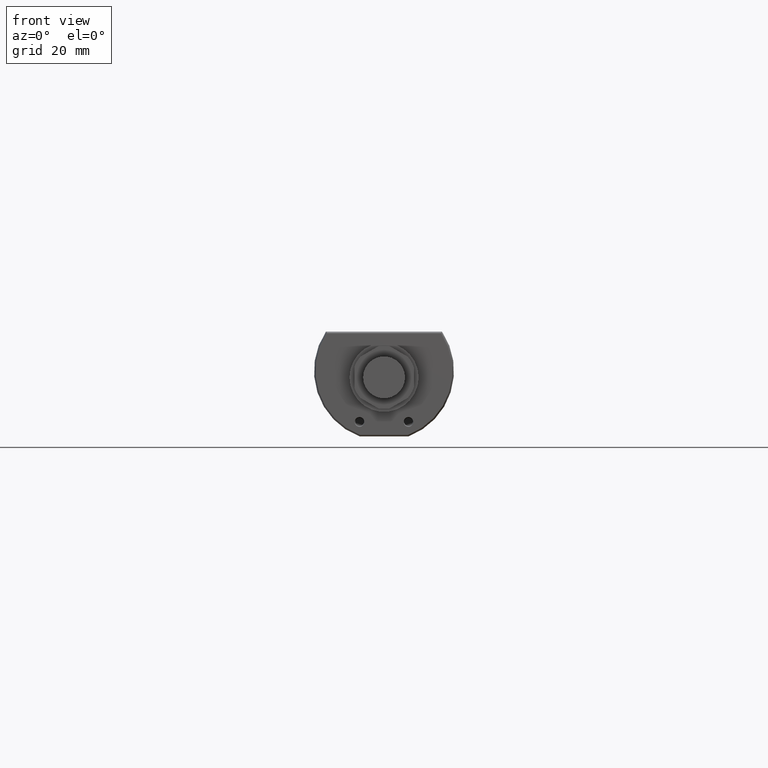
[diagram: clean part render]
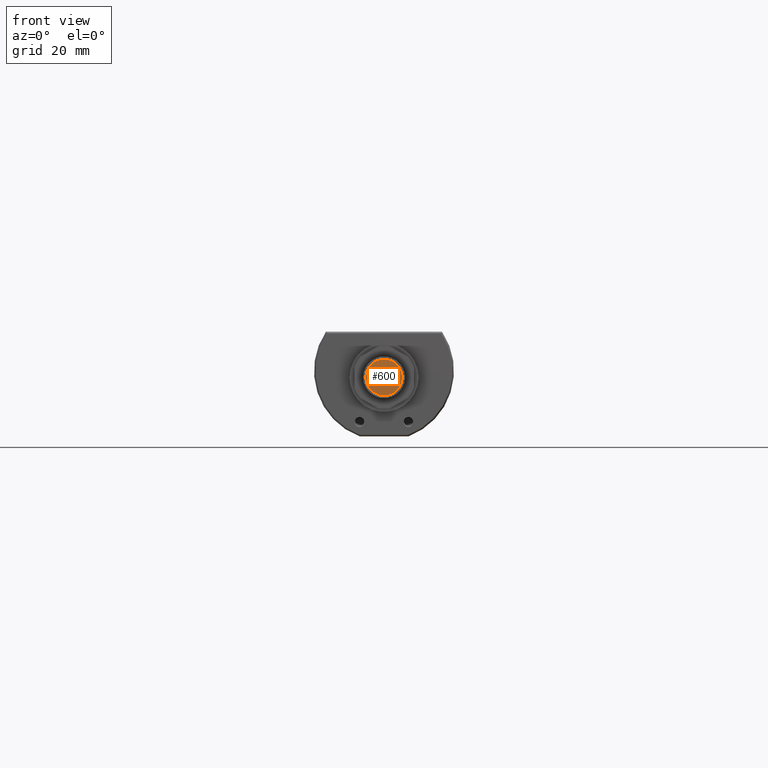
[diagram: same view with one face highlighted and labeled with its STEP entity id]
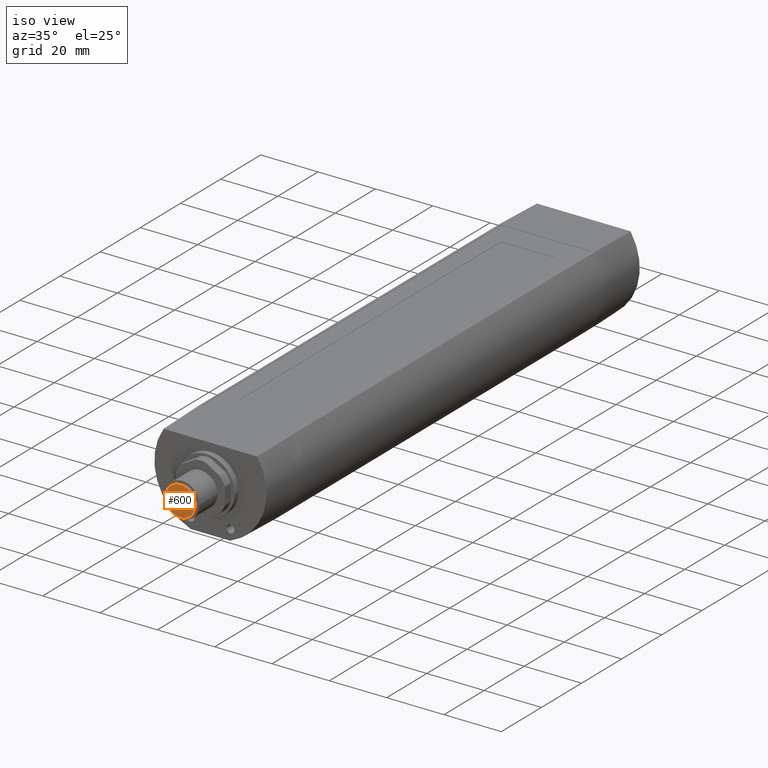
[diagram: same view with one face highlighted and labeled with its STEP entity id]
A machine part, front view. The second image highlights one B-rep face of the part: STEP entity #600.
A second angle (iso view) of the same face is appended — the face is thin or edge-on in the first view.
In plain terms, the highlighted planar face has unit normal (-0, -1, 0).
Its self-contained STEP definition (entity closure, byte-faithful):
#100=CARTESIAN_POINT('',(5.20000000000011,-1.89999999999999,-108.));
#110=VERTEX_POINT('',#100);
#160=CARTESIAN_POINT('',(1.07856432118858E-13,-1.89999999999999,-108.));
#170=DIRECTION('',(0.,0.,-1.));
#180=DIRECTION('',(1.,0.,0.));
#190=AXIS2_PLACEMENT_3D('',#160,#170,#180);
#200=CIRCLE('',#190,5.2);
#210=CARTESIAN_POINT('',(-5.19999999999989,-1.89999999999999,-108.));
#220=VERTEX_POINT('',#210);
#230=EDGE_CURVE('',#110,#220,#200,.T.);
#500=CARTESIAN_POINT('',(5.46000378000011,-7.36000377999999,-108.));
#510=DIRECTION('',(0.,0.,-1.));
#520=DIRECTION('',(-1.,0.,0.));
#530=AXIS2_PLACEMENT_3D('',#500,#510,#520);
#540=PLANE('',#530);
#550=EDGE_CURVE('',#220,#110,#200,.T.);
#560=ORIENTED_EDGE('',*,*,#550,.T.);
#570=ORIENTED_EDGE('',*,*,#230,.T.);
#580=EDGE_LOOP('',(#570,#560));
#590=FACE_OUTER_BOUND('',#580,.T.);
#600=ADVANCED_FACE('',(#590),#540,.T.);